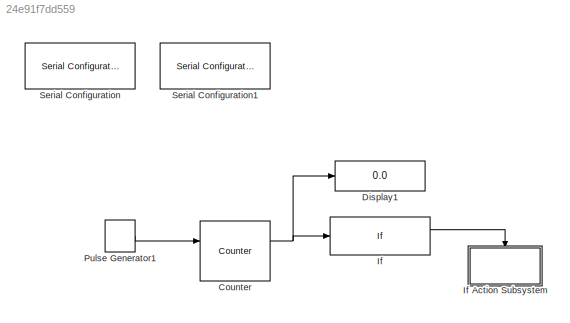
MODEL slx_24e91f7dd559
KIND model
CONFIG AbsTol = auto
CONFIG FixedStep = 0.1
CONFIG MaxStep = auto
CONFIG MinStep = auto
CONFIG RelTol = 1e-3
CONFIG SampleTimeConstraint = Unconstrained
CONFIG Solver = ode1
CONFIG SolverMode = Auto
CONFIG SolverName = ode1
CONFIG StartTime = 0.0
CONFIG StopTime = inf
BLOCK [Reference] Counter  REF=dspswit3/Counter
  Ports = [2, 2]
  SourceBlock = dspswit3/Counter
  SourceType = Counter
BLOCK [Display] Display1
  Decimation = 1
  Ports = [1]
BLOCK [If] If
  IfExpression = u1 > 10
  Ports = [1, 2]
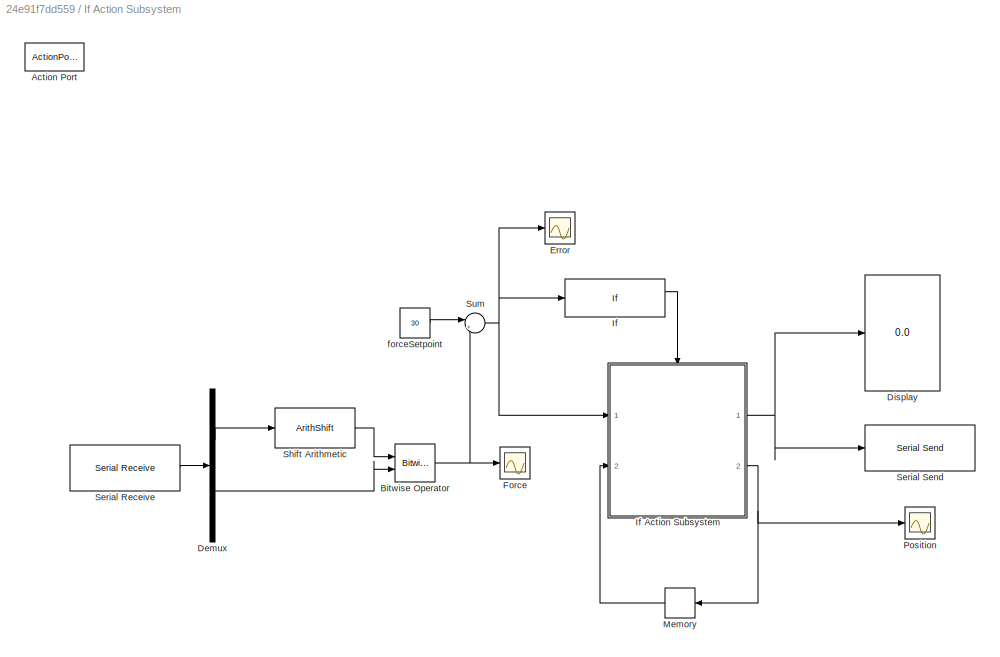
BLOCK [SubSystem] If Action Subsystem
  Ports = [0, 0, 0, 0, 0, 0, 0, 1]
  RequestExecContextInheritance = off
  TreatAsAtomicUnit = on
  Variant = off
BLOCK [ActionPort] If Action Subsystem/Action Port
  ActionType = then
BLOCK [Reference] If Action Subsystem/Bitwise Operator  REF=simulink/Logic and Bit
Operations/Bitwise
Operator
  Ports = [2, 1]
  SourceBlock = simulink/Logic and Bit\nOperations/Bitwise\nOperator
  SourceType = Bitwise Operator
BLOCK [Demux] If Action Subsystem/Demux
  DisplayOption = bar
  Outputs = 2
  Ports = [1, 2]
BLOCK [Display] If Action Subsystem/Display
  Decimation = 1
  Ports = [1]
BLOCK [Scope] If Action Subsystem/Error 
  Ports = [1]
  ScopeSpecificationString = Simulink.scopes.TimeScopeBlockCfg('CurrentConfiguration', extmgr.ConfigurationSet(extmgr.Configuration('Core','General UI',true),extmgr.Configuration('Core','Source UI',true),extmgr.Configuration('Sources','WiredSimulink',true,'DataLoggingDecimateData',true,'DataLoggingVariableName','ScopeData2'),extmgr.Configuration('Visuals','Time Domain',true,'SerializedDisplays',{struct('MinYLimReal','-229.875...<+1536ch>
BLOCK [Scope] If Action Subsystem/Force
  Ports = [1]
  ScopeSpecificationString = Simulink.scopes.TimeScopeBlockCfg('CurrentConfiguration', extmgr.ConfigurationSet(extmgr.Configuration('Core','General UI',true),extmgr.Configuration('Core','Source UI',true),extmgr.Configuration('Sources','WiredSimulink',true,'DataLoggingDecimateData',true),extmgr.Configuration('Visuals','Time Domain',true,'SerializedDisplays',{struct('MinYLimReal','-27.25','MaxYLimReal','300','YLabelReal','','Mi...<+1771ch>
BLOCK [If] If Action Subsystem/If
  IfExpression = u1 > 5 | u1 < -5
  Ports = [1, 2]
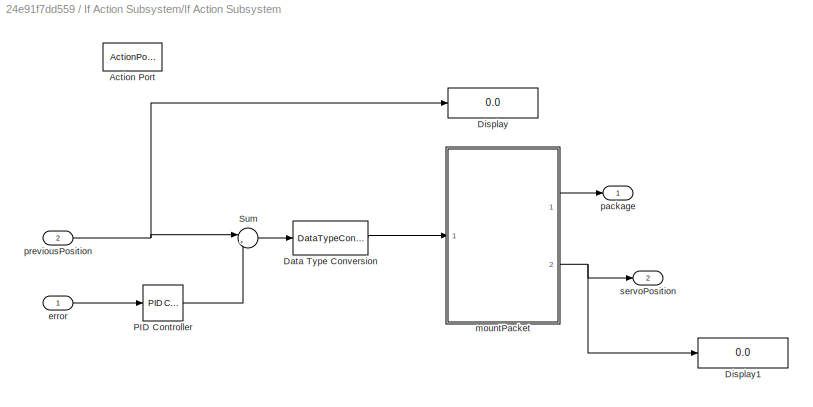
BLOCK [SubSystem] If Action Subsystem/If Action Subsystem
  Ports = [2, 2, 0, 0, 0, 0, 0, 1]
  RequestExecContextInheritance = off
  TreatAsAtomicUnit = on
  Variant = off
BLOCK [ActionPort] If Action Subsystem/If Action Subsystem/Action Port
  ActionType = then
BLOCK [DataTypeConversion] If Action Subsystem/If Action Subsystem/Data Type Conversion
  OutDataTypeStr = uint16
  RndMeth = Floor
  SaturateOnIntegerOverflow = off
BLOCK [Display] If Action Subsystem/If Action Subsystem/Display
  Decimation = 1
  Ports = [1]
BLOCK [Display] If Action Subsystem/If Action Subsystem/Display1
  Decimation = 1
  Ports = [1]
BLOCK [Reference] If Action Subsystem/If Action Subsystem/PID Controller  REF=simulink/Continuous/PID Controller
  Ports = [1, 1]
  SourceBlock = simulink/Continuous/PID Controller
  SourceType = PID 1dof
BLOCK [Sum] If Action Subsystem/If Action Subsystem/Sum
  IconShape = round
  InputSameDT = off
  Inputs = |+-
  OutDataTypeStr = Inherit: Inherit via internal rule
  Ports = [2, 1]
  SaturateOnIntegerOverflow = off
BLOCK [Inport] If Action Subsystem/If Action Subsystem/error
  IconDisplay = Port number
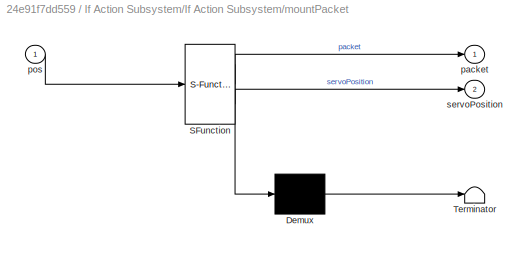
BLOCK [SubSystem] If Action Subsystem/If Action Subsystem/mountPacket
  ErrorFcn = Stateflow.Translate.translate
  PermitHierarchicalResolution = ExplicitOnly
  Ports = [1, 2]
  RequestExecContextInheritance = off
  SFBlockType = MATLAB Function
  TreatAsAtomicUnit = on
  Variant = off
BLOCK [Demux] If Action Subsystem/If Action Subsystem/mountPacket/ Demux 
  Outputs = 1
  Ports = [1, 1]
BLOCK [S-Function] If Action Subsystem/If Action Subsystem/mountPacket/ SFunction 
  EnableBusSupport = on
  FunctionName = sf_sfun
  PortCounts = [1 3]
  Ports = [1, 3]
  SFunctionDeploymentMode = off
  Tag = Stateflow S-Function simulink_Pcontroller 2
BLOCK [Terminator] If Action Subsystem/If Action Subsystem/mountPacket/ Terminator 
BLOCK [Outport] If Action Subsystem/If Action Subsystem/mountPacket/packet
  IconDisplay = Port number
BLOCK [Inport] If Action Subsystem/If Action Subsystem/mountPacket/pos
  IconDisplay = Port number
BLOCK [Outport] If Action Subsystem/If Action Subsystem/mountPacket/servoPosition
  IconDisplay = Port number
  Port = 2
BLOCK [Outport] If Action Subsystem/If Action Subsystem/package
  IconDisplay = Port number
BLOCK [Inport] If Action Subsystem/If Action Subsystem/previousPosition
  IconDisplay = Port number
  Port = 2
BLOCK [Outport] If Action Subsystem/If Action Subsystem/servoPosition
  IconDisplay = Port number
  Port = 2
BLOCK [Memory] If Action Subsystem/Memory
  InheritSampleTime = on
  X0 = 512
BLOCK [Scope] If Action Subsystem/Position 
  Ports = [1]
  ScopeSpecificationString = Simulink.scopes.TimeScopeBlockCfg('CurrentConfiguration', extmgr.ConfigurationSet(extmgr.Configuration('Core','General UI',true),extmgr.Configuration('Core','Source UI',true),extmgr.Configuration('Sources','WiredSimulink',true,'DataLoggingDecimateData',true,'DataLoggingVariableName','ScopeData1'),extmgr.Configuration('Visuals','Time Domain',true,'SerializedDisplays',{struct('MinYLimReal','-27.25',...<+1551ch>
BLOCK [Reference] If Action Subsystem/Serial Receive  REF=instrumentlib/Serial Receive
  Ports = [0, 1]
  SourceBlock = instrumentlib/Serial Receive
  SourceType = Serial Receive
BLOCK [Reference] If Action Subsystem/Serial Send  REF=instrumentlib/Serial Send
  Ports = [1]
  SourceBlock = instrumentlib/Serial Send
  SourceType = Serial Send
BLOCK [ArithShift] If Action Subsystem/Shift Arithmetic
  BitShiftDirection = Left
  BitShiftNumber = 8
  InputPortMap = u0
  Ports = [1, 1]
BLOCK [Sum] If Action Subsystem/Sum
  IconShape = round
  InputSameDT = off
  Inputs = |+-
  OutDataTypeStr = Inherit: Inherit via internal rule
  Ports = [2, 1]
  SaturateOnIntegerOverflow = off
BLOCK [Constant] If Action Subsystem/forceSetpoint
  Value = 30
BLOCK [DiscretePulseGenerator] Pulse Generator1
  Period = 500
  Ports = [0, 1]
  PulseType = Time based
  PulseWidth = 50
BLOCK [Reference] Serial Configuration  REF=instrumentlib/Serial Configuration
  Ports = []
  Priority = -200000
  SourceBlock = instrumentlib/Serial Configuration
  SourceType = Serial Configuration
BLOCK [Reference] Serial Configuration1  REF=instrumentlib/Serial Configuration
  Ports = []
  Priority = -200000
  SourceBlock = instrumentlib/Serial Configuration
  SourceType = Serial Configuration
NET Counter:1 -> Display1:1, If:1
NET If Action Subsystem/Bitwise Operator:1 -> If Action Subsystem/Force:1, If Action Subsystem/Sum:2
LINE If Action Subsystem/Demux:1 -> If Action Subsystem/Shift Arithmetic:1
LINE If Action Subsystem/Demux:2 -> If Action Subsystem/Bitwise Operator:2
LINE If Action Subsystem/If Action Subsystem/Data Type Conversion:1 -> If Action Subsystem/If Action Subsystem/mountPacket:1
LINE If Action Subsystem/If Action Subsystem/PID Controller:1 -> If Action Subsystem/If Action Subsystem/Sum:2
LINE If Action Subsystem/If Action Subsystem/Sum:1 -> If Action Subsystem/If Action Subsystem/Data Type Conversion:1
LINE If Action Subsystem/If Action Subsystem/error:1 -> If Action Subsystem/If Action Subsystem/PID Controller:1
LINE If Action Subsystem/If Action Subsystem/mountPacket:1 -> If Action Subsystem/If Action Subsystem/package:1
NET If Action Subsystem/If Action Subsystem/mountPacket:2 -> If Action Subsystem/If Action Subsystem/Display1:1, If Action Subsystem/If Action Subsystem/servoPosition:1
NET If Action Subsystem/If Action Subsystem/previousPosition:1 -> If Action Subsystem/If Action Subsystem/Display:1, If Action Subsystem/If Action Subsystem/Sum:1
NET If Action Subsystem/If Action Subsystem:1 -> If Action Subsystem/Display:1, If Action Subsystem/Serial Send:1
NET If Action Subsystem/If Action Subsystem:2 -> If Action Subsystem/Memory:1, If Action Subsystem/Position :1
LINE If Action Subsystem/If:1 -> If Action Subsystem/If Action Subsystem:ifaction
LINE If Action Subsystem/Memory:1 -> If Action Subsystem/If Action Subsystem:2
LINE If Action Subsystem/Serial Receive:1 -> If Action Subsystem/Demux:1
LINE If Action Subsystem/Shift Arithmetic:1 -> If Action Subsystem/Bitwise Operator:1
NET If Action Subsystem/Sum:1 -> If Action Subsystem/Error :1, If Action Subsystem/If Action Subsystem:1, If Action Subsystem/If:1
LINE If Action Subsystem/forceSetpoint:1 -> If Action Subsystem/Sum:1
LINE If:1 -> If Action Subsystem:ifaction
LINE Pulse Generator1:1 -> Counter:1
note: NET lines group one-source signal fan-out (src -> all destinations, sorted); 1:1 wires keep LINE
CHART If Action
Subsystem/If Action
Subsystem/mountPacket states=1 transitions=1
  STATE_LABEL 'eML_blk_kernel()'
  STATE_LABEL "SCRIPT:\nfunction [packet,servoPosition] = sendSerialData(pos)     \n    posMSB = uint8(bitshift(pos,-8)); %equivalent to pos>>8\n    posLSB = uint8(bitand(pos,255)); %equivalent to pos&0XFF\n    packet = uint8(zeros(1,6));\n    servoPosition = pos;\n    packet(1) = uint8(36); %header: '$'\n    packet(2) = uint8(0); %action\n    packet(3) = uint8(6); %servo\n    packet(4) = uint8(posMSB); %posMSB\n    packe...<+106ch>"
